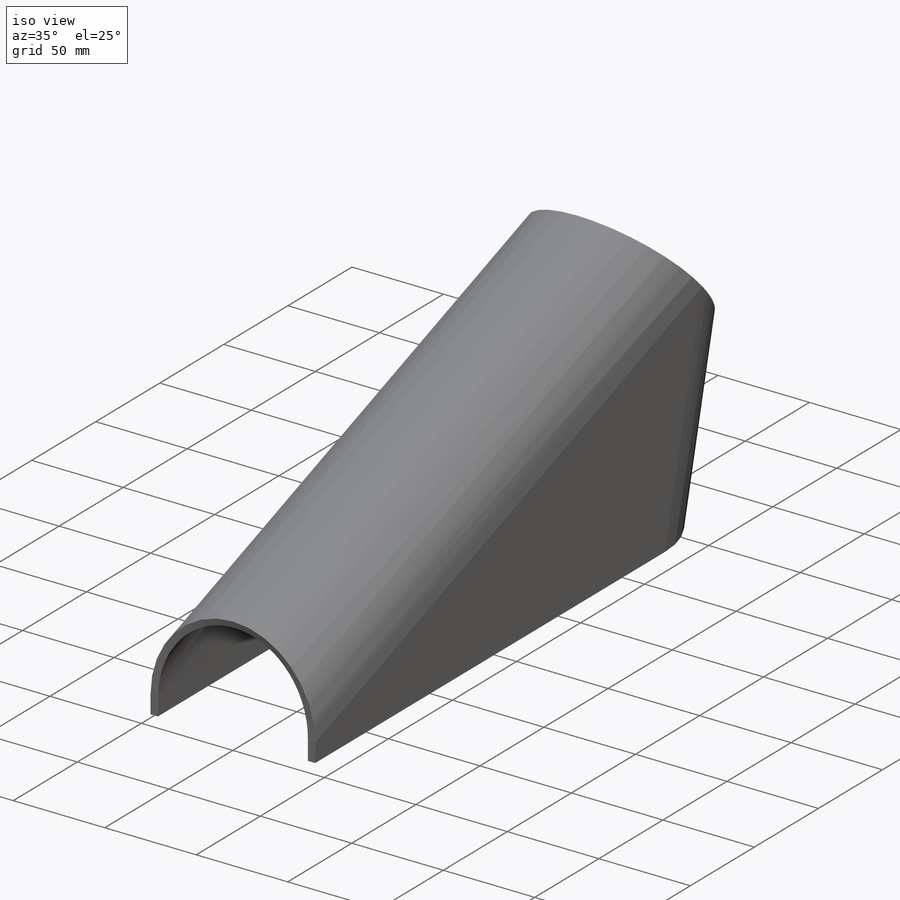
[diagram: iso view]
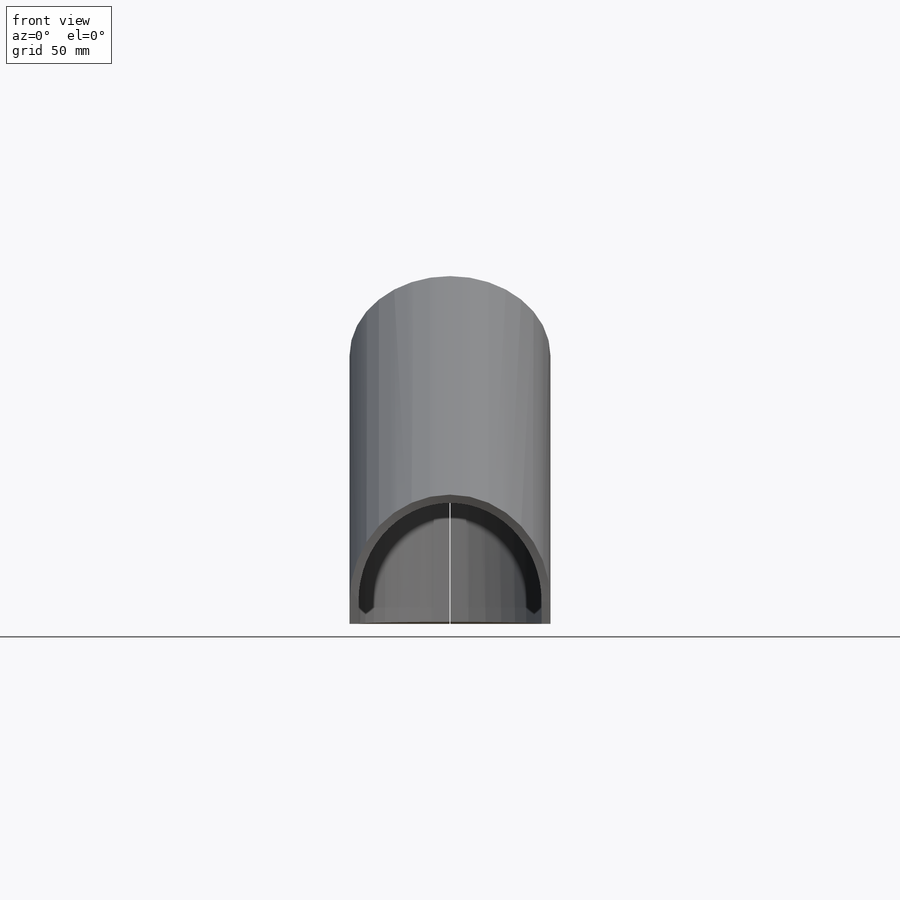
[diagram: front view]
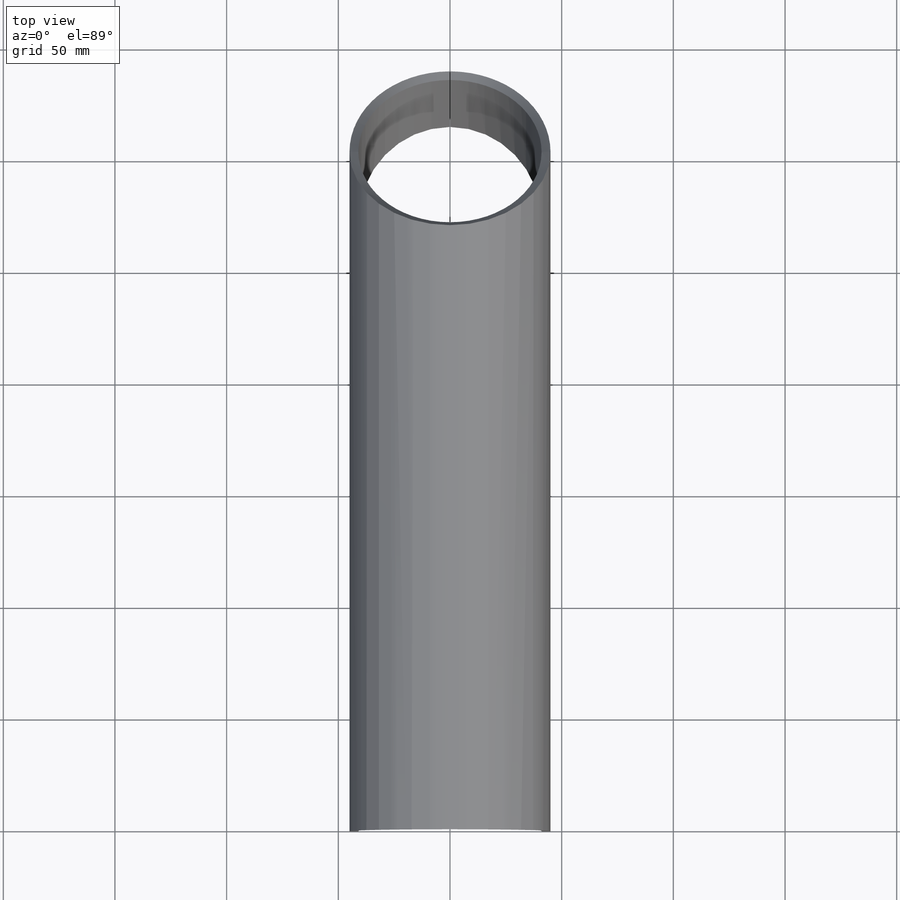
[diagram: top view]
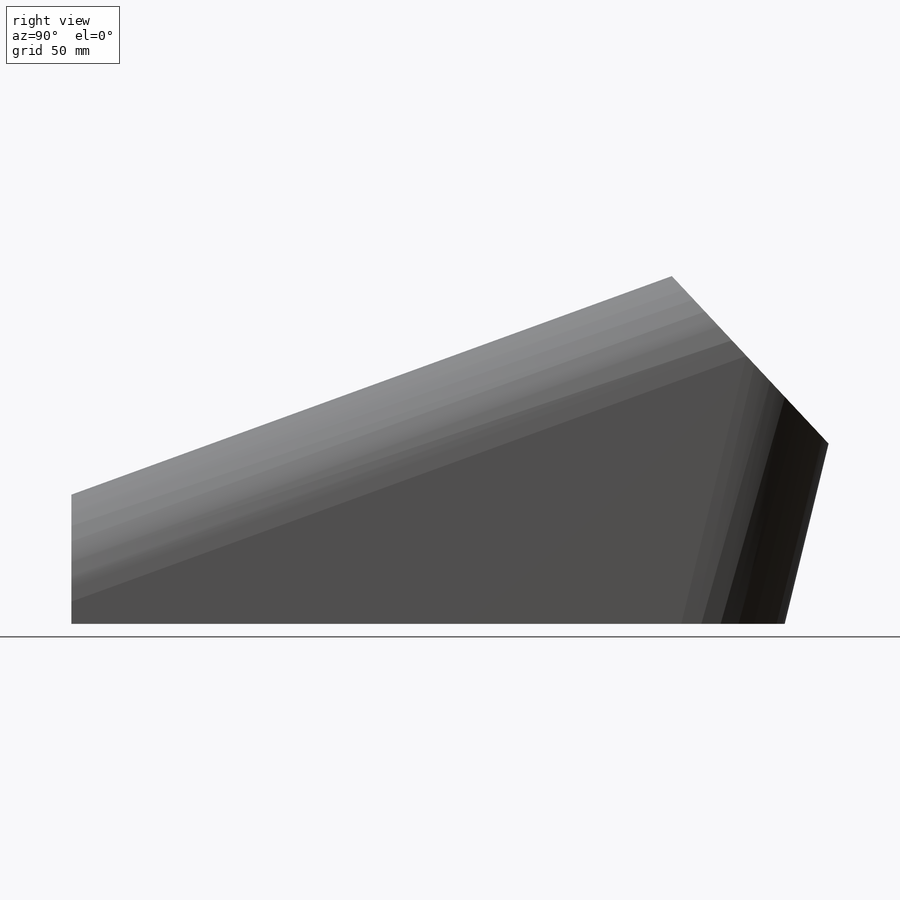
[diagram: right view]
SOLIDWORKS PART (.sldprt)
format: sldprt  version: not decoded by parser v0  size: 384,512 bytes
history: native  units: mm
features: sketch x21, sheet_metal_op x7, plane x5, cut_extrude x2, material x1, extrude x1 + 16 further entries (+10 scaffold rows collapsed; 1 parser-record rows omitted)
feature tree (64):
  scaffold x10  (default folders/planes/origin — collapsed)
  material  "Material <nicht angegeben>"
  plane  "Ebene vorne"
  plane  "Ebene oben"
  plane  "Ebene rechts"
  sketch  "Skizze14"  dims[c1.D1=273.0mm c1.D2=10.0mm c1.D3=120.0mm c1.D4=273.0mm c2.D4=70.0deg c2.D5=~316.676428mm c3.D5=20.0deg c3.D4=~316.676428mm c4.D4=20.0deg]
  plane  "Ebene1"
  sketch  "Skizze15"  dims[D1=90.0mm D2=~52.246544mm]
  sheet_metal_op  "Basis-Blech3"
  plane  "Ebene2"
  sketch  "Skizze18"  dims[D1=~30.771095mm]
  cut_extrude  "Schnitt-Linear austragen1"  [1 undecoded]
  sketch  "Skizze19"  dims[c1.D1=45.0mm c1.D3=41.0mm c2.D1=~44.984828mm c3.D1=~178.512142deg c4.D1=45.0mm c5.D1=0.5deg c5.D2=~44.998287mm c6.D2=1.0deg c6.D3=4.0mm]
  extrude  "Aufsatz-Linear austragen1"  Depth=138mm
  sketch  "Skizze45"  dims[c1.D1=41.0mm c1.D4=89.5deg c1.D5=2.0 c1.D8=2.0mm c1.D9=2.0mm c2.D1=41.0mm c2.D2=500.0mm c2.D3=0.0mm c2.D6=10.0mm c2.D7=44.8mm]
  sketch  "Skizze48"  dims[c1.D1=41.0mm c1.D4=89.5deg c1.D5=3.0 c1.D8=2.0mm c1.D9=2.0mm c2.D1=41.0mm c2.D2=500.0mm c2.D3=0.0mm c2.D6=10.0mm c2.D7=44.8mm]
  sketch  "Skizze49"  dims[D1=~0.982311mm]
  cut_extrude  "Schnitt-Linear austragen2"  [1 undecoded]
  sketch  "Biegung-Linien1"
  sketch  "Rahmen1"
  sheet_metal_op  "Blech3"
  "Abwicklung3"
  sketch  "Biegung-Linien4"
  sketch  "Rahmen4"
  parser-record x1  (decoder bookkeeping rows leaked as tree rows — omitted from the tree; the rows remain in map.json)
  sheet_metal_op  "Blech4"
  "Abwicklung3"
  sketch  "Biegung-Linien4"
  sketch  "Rahmen4"
  "Abwickeln-<Basisbiegung2>1"
  sheet_metal_op  "Blech9"
  "Abwicklung3"
  sketch  "Biegung-Linien4"
  sketch  "Rahmen4"
  "Abwickeln-<Basisbiegung2>1"
  sheet_metal_op  "Blech11"
  "Abwicklung3"
  sketch  "Biegung-Linien4"
  sketch  "Rahmen4"
  "Abwickeln-<Basisbiegung2>1"
  "Abwickeln-<Kantenbiegung2>1"
  sheet_metal_op  "Blech12"
  "Abwicklung3"
  sketch  "Biegung-Linien4"
  sketch  "Rahmen4"
  "Abwickeln-<Basisbiegung2>1"
  "Abwickeln-<Kantenbiegung2>1"
  "Abwickeln-<Kantenbiegung3>1"
  sheet_metal_op  "Blech13"
  "Abwicklung3"
  sketch  "Biegung-Linien4"
  sketch  "Rahmen4"
  "Abwickeln-<Basisbiegung2>1"
  "Abwickeln-<Kantenbiegung2>1"
  "Abwickeln-<Kantenbiegung3>1"
decode coverage: 8 of 31 modeling features carry decoded parameters; 16 rows unclassified (native names shown)
note: ~ marks probable driven/reference dimensions
note: 2 parameter values undecoded
note: suppression state not decoded; provenance and decode notes live in map.json
